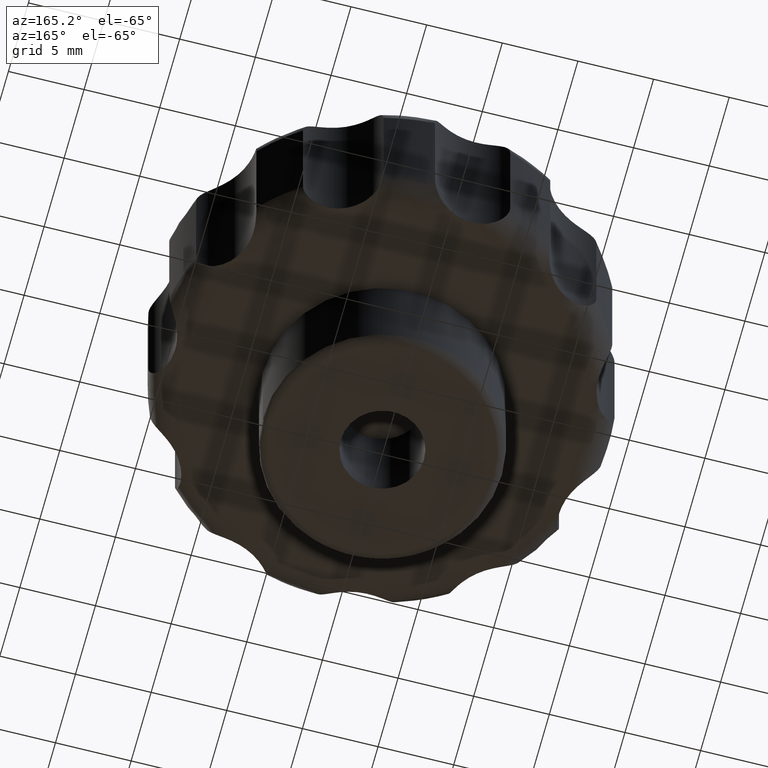
[diagram: clean part render]
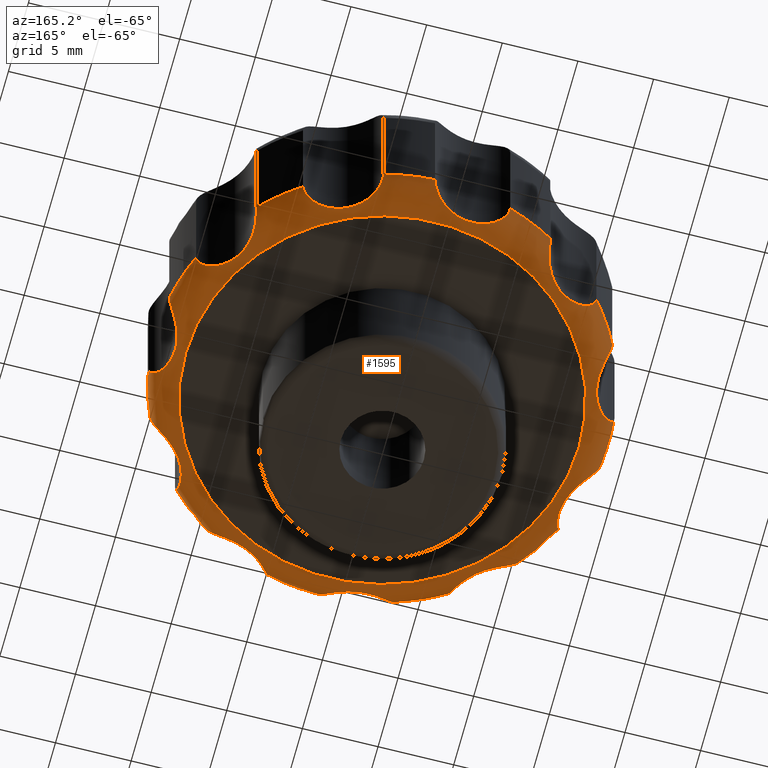
[diagram: same view with one face highlighted and labeled with its STEP entity id]
A machine part, auxiliary view. The second image highlights one B-rep face of the part: STEP entity #1595.
In plain terms, the highlighted face is a freeform B-spline surface patch.
Its self-contained STEP definition (entity closure, byte-faithful):
#7=CARTESIAN_POINT('',(-13.0,0.0,0.0));
#8=VERTEX_POINT('',#7);
#9=CARTESIAN_POINT('',(13.0,0.0,0.0));
#10=VERTEX_POINT('',#9);
#11=CARTESIAN_POINT('',(0.0,0.0,0.0));
#12=DIRECTION('',(0.0,0.0,1.0));
#13=DIRECTION('',(1.0,0.0,0.0));
#14=AXIS2_PLACEMENT_3D('',#11,#12,#13);
#15=CIRCLE('',#14,13.0);
#16=EDGE_CURVE('',#8,#10,#15,.T.);
#18=CARTESIAN_POINT('',(0.0,0.0,0.0));
#19=DIRECTION('',(0.0,0.0,1.0));
#20=DIRECTION('',(1.0,0.0,0.0));
#21=AXIS2_PLACEMENT_3D('',#18,#19,#20);
#22=CIRCLE('',#21,13.0);
#23=EDGE_CURVE('',#10,#8,#22,.T.);
#55=CARTESIAN_POINT('',(14.770908393575610,2.611563751585933,2.0));
#56=VERTEX_POINT('',#55);
#63=CARTESIAN_POINT('',(13.837996830716051,5.788768756228954,2.0));
#64=VERTEX_POINT('',#63);
#65=CARTESIAN_POINT('',(0.0,0.0,2.0));
#66=DIRECTION('',(0.0,0.0,1.0));
#67=DIRECTION('',(1.0,0.0,0.0));
#68=AXIS2_PLACEMENT_3D('',#65,#66,#67);
#69=CIRCLE('',#68,15.0);
#70=EDGE_CURVE('',#56,#64,#69,.T.);
#95=CARTESIAN_POINT('',(14.770908393575610,-2.611563751585933,2.0));
#96=VERTEX_POINT('',#95);
#114=CARTESIAN_POINT('',(13.837996830716065,-5.788768756228933,2.0));
#115=VERTEX_POINT('',#114);
#122=CARTESIAN_POINT('',(0.0,0.0,2.0));
#123=DIRECTION('',(0.0,0.0,1.0));
#124=DIRECTION('',(1.0,0.0,0.0));
#125=AXIS2_PLACEMENT_3D('',#122,#123,#124);
#126=CIRCLE('',#125,15.0);
#127=EDGE_CURVE('',#115,#96,#126,.T.);
#137=CARTESIAN_POINT('',(11.014160907726392,10.182743220699997,2.0));
#138=VERTEX_POINT('',#137);
#139=CARTESIAN_POINT('',(8.511619048717542,12.351208085426652,2.0));
#140=VERTEX_POINT('',#139);
#141=CARTESIAN_POINT('',(0.0,0.0,2.0));
#142=DIRECTION('',(0.0,0.0,1.0));
#143=DIRECTION('',(1.0,0.0,0.0));
#144=AXIS2_PLACEMENT_3D('',#141,#142,#143);
#145=CIRCLE('',#144,15.0);
#146=EDGE_CURVE('',#138,#140,#145,.T.);
#179=CARTESIAN_POINT('',(3.760495156016219,14.520973665067316,2.0));
#180=VERTEX_POINT('',#179);
#181=CARTESIAN_POINT('',(0.482862358977542,14.992226116967508,2.0));
#182=VERTEX_POINT('',#181);
#183=CARTESIAN_POINT('',(0.0,0.0,2.0));
#184=DIRECTION('',(0.0,0.0,1.0));
#185=DIRECTION('',(1.0,0.0,0.0));
#186=AXIS2_PLACEMENT_3D('',#183,#184,#185);
#187=CIRCLE('',#186,15.0);
#188=EDGE_CURVE('',#180,#182,#187,.T.);
#221=CARTESIAN_POINT('',(-4.687101237340002,14.248897571072852,2.0));
#222=VERTEX_POINT('',#221);
#223=CARTESIAN_POINT('',(-7.699199717995420,12.873318286378975,2.0));
#224=VERTEX_POINT('',#223);
#225=CARTESIAN_POINT('',(0.0,0.0,2.0));
#226=DIRECTION('',(0.0,0.0,1.0));
#227=DIRECTION('',(1.0,0.0,0.0));
#228=AXIS2_PLACEMENT_3D('',#225,#226,#227);
#229=CIRCLE('',#228,15.0);
#230=EDGE_CURVE('',#222,#224,#229,.T.);
#263=CARTESIAN_POINT('',(-11.646576105315575,9.452897176162040,2.0));
#264=VERTEX_POINT('',#263);
#265=CARTESIAN_POINT('',(-13.436820284450498,6.667222858385614,2.0));
#266=VERTEX_POINT('',#265);
#267=CARTESIAN_POINT('',(0.0,0.0,2.0));
#268=DIRECTION('',(0.0,0.0,1.0));
#269=DIRECTION('',(1.0,0.0,0.0));
#270=AXIS2_PLACEMENT_3D('',#267,#268,#269);
#271=CIRCLE('',#270,15.0);
#272=EDGE_CURVE('',#264,#266,#271,.T.);
#305=CARTESIAN_POINT('',(-14.908345350627904,1.655668718799575,2.0));
#306=VERTEX_POINT('',#305);
#307=CARTESIAN_POINT('',(-14.908345350627904,-1.655668718799575,2.0));
#308=VERTEX_POINT('',#307);
#309=CARTESIAN_POINT('',(0.0,0.0,2.0));
#310=DIRECTION('',(0.0,0.0,1.0));
#311=DIRECTION('',(1.0,0.0,0.0));
#312=AXIS2_PLACEMENT_3D('',#309,#310,#311);
#313=CIRCLE('',#312,15.0);
#314=EDGE_CURVE('',#306,#308,#313,.T.);
#347=CARTESIAN_POINT('',(-13.436820284450491,-6.667222858385635,2.0));
#348=VERTEX_POINT('',#347);
#349=CARTESIAN_POINT('',(-11.646576105315582,-9.452897176162033,2.0));
#350=VERTEX_POINT('',#349);
#351=CARTESIAN_POINT('',(0.0,0.0,2.0));
#352=DIRECTION('',(0.0,0.0,1.0));
#353=DIRECTION('',(1.0,0.0,0.0));
#354=AXIS2_PLACEMENT_3D('',#351,#352,#353);
#355=CIRCLE('',#354,15.0);
#356=EDGE_CURVE('',#348,#350,#355,.T.);
#389=CARTESIAN_POINT('',(-7.699199717995420,-12.873318286378975,2.0));
#390=VERTEX_POINT('',#389);
#391=CARTESIAN_POINT('',(-4.687101237340002,-14.248897571072852,2.0));
#392=VERTEX_POINT('',#391);
#393=CARTESIAN_POINT('',(0.0,0.0,2.0));
#394=DIRECTION('',(0.0,0.0,1.0));
#395=DIRECTION('',(1.0,0.0,0.0));
#396=AXIS2_PLACEMENT_3D('',#393,#394,#395);
#397=CIRCLE('',#396,15.0);
#398=EDGE_CURVE('',#390,#392,#397,.T.);
#431=CARTESIAN_POINT('',(0.482862358977542,-14.992226116967508,2.0));
#432=VERTEX_POINT('',#431);
#433=CARTESIAN_POINT('',(3.760495156016233,-14.520973665067316,2.0));
#434=VERTEX_POINT('',#433);
#435=CARTESIAN_POINT('',(0.0,0.0,2.0));
#436=DIRECTION('',(0.0,0.0,1.0));
#437=DIRECTION('',(1.0,0.0,0.0));
#438=AXIS2_PLACEMENT_3D('',#435,#436,#437);
#439=CIRCLE('',#438,15.0);
#440=EDGE_CURVE('',#432,#434,#439,.T.);
#473=CARTESIAN_POINT('',(8.511619048717527,-12.351208085426663,2.0));
#474=VERTEX_POINT('',#473);
#475=CARTESIAN_POINT('',(11.014160907726406,-10.182743220699976,2.0));
#476=VERTEX_POINT('',#475);
#477=CARTESIAN_POINT('',(0.0,0.0,2.0));
#478=DIRECTION('',(0.0,0.0,1.0));
#479=DIRECTION('',(1.0,0.0,0.0));
#480=AXIS2_PLACEMENT_3D('',#477,#478,#479);
#481=CIRCLE('',#480,15.0);
#482=EDGE_CURVE('',#474,#476,#481,.T.);
#1076=CARTESIAN_POINT('',(15.0,0.0,2.0));
#1077=CARTESIAN_POINT('',(15.0,0.0,1.739879570645162));
#1078=CARTESIAN_POINT('',(14.895922447768443,0.0,1.213944365313450));
#1079=CARTESIAN_POINT('',(14.450825822945896,0.0,0.549174177054105));
#1080=CARTESIAN_POINT('',(13.786055634686548,0.0,0.104077552231559));
#1081=CARTESIAN_POINT('',(13.260120429354838,0.0,1.592778E-017));
#1082=CARTESIAN_POINT('',(13.0,0.0,0.0));
#1083=CARTESIAN_POINT('',(15.0,0.980171403295606,2.0));
#1084=CARTESIAN_POINT('',(15.0,0.980171403295606,1.739879570645162));
#1085=CARTESIAN_POINT('',(14.895922447768443,0.973370480600781,1.213944365313450));
#1086=CARTESIAN_POINT('',(14.450825822945896,0.944285748377151,0.549174177054105));
#1087=CARTESIAN_POINT('',(13.786055634686548,0.900846499824134,0.104077552231559));
#1088=CARTESIAN_POINT('',(13.260120429354838,0.866479389940631,9.769780E-018));
#1089=CARTESIAN_POINT('',(13.0,0.849481882856192,0.0));
#1090=CARTESIAN_POINT('',(14.806614185968764,2.945946464761674,1.999999999999999));
#1091=CARTESIAN_POINT('',(14.806614185968764,2.945946464761674,1.739879570645162));
#1092=CARTESIAN_POINT('',(14.703878441881248,2.925506004957834,1.213944365313450));
#1093=CARTESIAN_POINT('',(14.264520175266298,2.838090616399610,0.549174177054105));
#1094=CARTESIAN_POINT('',(13.608320461940295,2.707532124000839,0.104077552231558));
#1095=CARTESIAN_POINT('',(13.089165817129306,2.604240326744796,2.307303E-017));
#1096=CARTESIAN_POINT('',(12.832398961172929,2.553153602793450,0.0));
#1097=CARTESIAN_POINT('',(13.947525585400044,5.777059249842273,2.0));
#1098=CARTESIAN_POINT('',(13.947525585400044,5.777059249842273,1.739879570645162));
#1099=CARTESIAN_POINT('',(13.850750630559020,5.736975104120921,1.213944365313450));
#1100=CARTESIAN_POINT('',(13.436884193046501,5.565551799220611,0.549174177054105));
#1101=CARTESIAN_POINT('',(12.818757579102611,5.309524014880411,0.104077552231559));
#1102=CARTESIAN_POINT('',(12.329724596927495,5.106966758695124,1.564338E-019));
#1103=CARTESIAN_POINT('',(12.087855507346706,5.006784683196637,0.0));
#1104=CARTESIAN_POINT('',(12.552441398446865,8.387325448727314,2.000000000000001));
#1105=CARTESIAN_POINT('',(12.552441398446865,8.387325448727314,1.739879570645163));
#1106=CARTESIAN_POINT('',(12.465346240094828,8.329129961895781,1.213944365313450));
#1107=CARTESIAN_POINT('',(12.092876286779404,8.080251945327991,0.549174177054105));
#1108=CARTESIAN_POINT('',(11.536577031342071,7.708542350825134,0.104077552231558));
#1109=CARTESIAN_POINT('',(11.096458975054976,7.414463035354450,-1.487527E-016));
#1110=CARTESIAN_POINT('',(10.878782545320615,7.269015388897001,0.0));
#1111=CARTESIAN_POINT('',(10.674973928041592,10.674959927012679,2.0));
#1112=CARTESIAN_POINT('',(10.674973928041592,10.674959927012679,1.739879570645163));
#1113=CARTESIAN_POINT('',(10.600905584270510,10.600891680387784,1.213944365313451));
#1114=CARTESIAN_POINT('',(10.284145926574510,10.284132438145830,0.549174177054106));
#1115=CARTESIAN_POINT('',(9.811052298053989,9.811039430123090,0.104077552231559));
#1116=CARTESIAN_POINT('',(9.436762657736972,9.436750280715005,2.491797E-016));
#1117=CARTESIAN_POINT('',(9.251644070969380,9.251631936744325,0.0));
#1118=CARTESIAN_POINT('',(8.387273196176041,12.552445150011245,2.000000000000000));
#1119=CARTESIAN_POINT('',(8.387273196176041,12.552445150011245,1.739879570645162));
#1120=CARTESIAN_POINT('',(8.329078071899017,12.465349965628969,1.213944365313450));
#1121=CARTESIAN_POINT('',(8.080201605826847,12.092879900992971,0.549174177054105));
#1122=CARTESIAN_POINT('',(7.708494327053216,11.536580479293752,0.104077552231558));
#1123=CARTESIAN_POINT('',(7.414416843679614,11.096462291468008,1.977256E-017));
#1124=CARTESIAN_POINT('',(7.268970103352572,10.878785796676409,0.0));
#1125=CARTESIAN_POINT('',(5.777254259018439,13.947524580171400,2.000000000000000));
#1126=CARTESIAN_POINT('',(5.777254259018439,13.947524580171400,1.739879570645162));
#1127=CARTESIAN_POINT('',(5.737168760225241,13.850749632305156,1.213944365313450));
#1128=CARTESIAN_POINT('',(5.565739668796523,13.436883224620898,0.549174177054105));
#1129=CARTESIAN_POINT('',(5.309703242037201,12.818756655226739,0.104077552231559));
#1130=CARTESIAN_POINT('',(5.107139148372513,12.329723708297299,-1.223930E-016));
#1131=CARTESIAN_POINT('',(5.006953691149316,12.087854636148545,0.0));
#1132=CARTESIAN_POINT('',(2.945218680608279,14.806614455318972,2.000000000000000));
#1133=CARTESIAN_POINT('',(2.945218680608279,14.806614455318972,1.739879570645162));
#1134=CARTESIAN_POINT('',(2.924783270537323,14.703878709362568,1.213944365313451));
#1135=CARTESIAN_POINT('',(2.837389477597117,14.264520434755157,0.549174177054106));
#1136=CARTESIAN_POINT('',(2.706863239145593,13.608320709492094,0.104077552231558));
#1137=CARTESIAN_POINT('',(2.603596959710092,13.089166055237049,1.241248E-016));
#1138=CARTESIAN_POINT('',(2.552522856527178,12.832399194609776,0.0));
#1139=CARTESIAN_POINT('',(-2.553513E-015,15.096692834843449,2.0));
#1140=CARTESIAN_POINT('',(-2.553513E-015,15.096692834843449,1.739879570645162));
#1141=CARTESIAN_POINT('',(-2.886580E-015,14.991944379040635,1.213944365313450));
#1142=CARTESIAN_POINT('',(-9.992007E-016,14.543978577255865,0.549174177054105));
#1143=CARTESIAN_POINT('',(-6.661338E-016,13.874923154728370,0.104077552231558));
#1144=CARTESIAN_POINT('',(4.440892E-016,13.345597671666827,-5.791897E-017));
#1145=CARTESIAN_POINT('',(5.551115E-016,13.083800456864319,0.0));
#1146=CARTESIAN_POINT('',(-2.945218680608269,14.806614205307243,2.0));
#1147=CARTESIAN_POINT('',(-2.945218680608269,14.806614205307243,1.739879570645162));
#1148=CARTESIAN_POINT('',(-2.924783270537310,14.703878461085548,1.213944365313450));
#1149=CARTESIAN_POINT('',(-2.837389477597109,14.264520193896763,0.549174177054106));
#1150=CARTESIAN_POINT('',(-2.706863239145579,13.608320479713722,0.104077552231560));
#1151=CARTESIAN_POINT('',(-2.603596959710079,13.089165834224676,2.031178E-016));
#1152=CARTESIAN_POINT('',(-2.552522856527163,12.832398977932950,0.0));
#1153=CARTESIAN_POINT('',(-5.777254259018445,13.947525580218317,2.0));
#1154=CARTESIAN_POINT('',(-5.777254259018445,13.947525580218317,1.739879570645162));
#1155=CARTESIAN_POINT('',(-5.737168760225248,13.850750625413239,1.213944365313450));
#1156=CARTESIAN_POINT('',(-5.565739668796521,13.436884188054492,0.549174177054105));
#1157=CARTESIAN_POINT('',(-5.309703242037206,12.818757574340230,0.104077552231558));
#1158=CARTESIAN_POINT('',(-5.107139148372510,12.329724592346809,2.876349E-018));
#1159=CARTESIAN_POINT('',(-5.006953691149315,12.087855502855875,0.0));
#1160=CARTESIAN_POINT('',(-8.387273196176036,12.552441399835303,2.000000000000000));
#1161=CARTESIAN_POINT('',(-8.387273196176036,12.552441399835303,1.739879570645163));
#1162=CARTESIAN_POINT('',(-8.329078071899012,12.465346241473640,1.213944365313449));
#1163=CARTESIAN_POINT('',(-8.080201605826847,12.092876288117003,0.549174177054105));
#1164=CARTESIAN_POINT('',(-7.708494327053208,11.536577032618148,0.104077552231559));
#1165=CARTESIAN_POINT('',(-7.414416843679611,11.096458976282364,-1.190565E-016));
#1166=CARTESIAN_POINT('',(-7.268970103352567,10.878782546523926,0.0));
#1167=CARTESIAN_POINT('',(-10.674973928041595,10.674973927669566,2.000000000000000));
#1168=CARTESIAN_POINT('',(-10.674973928041595,10.674973927669566,1.739879570645162));
#1169=CARTESIAN_POINT('',(-10.600905584270512,10.600905583901064,1.213944365313450));
#1170=CARTESIAN_POINT('',(-10.284145926574510,10.284145926216107,0.549174177054105));
#1171=CARTESIAN_POINT('',(-9.811052298053985,9.811052297712076,0.104077552231559));
#1172=CARTESIAN_POINT('',(-9.436762657736969,9.436762657408105,1.276751E-016));
#1173=CARTESIAN_POINT('',(-9.251644070969377,9.251644070646965,0.0));
#1174=CARTESIAN_POINT('',(-12.552441398446858,8.387273196275695,2.0));
#1175=CARTESIAN_POINT('',(-12.552441398446858,8.387273196275695,1.739879570645162));
#1176=CARTESIAN_POINT('',(-12.465346240094830,8.329078071997977,1.213944365313449));
#1177=CARTESIAN_POINT('',(-12.092876286779392,8.080201605922847,0.549174177054104));
#1178=CARTESIAN_POINT('',(-11.536577031342064,7.708494327144802,0.104077552231558));
#1179=CARTESIAN_POINT('',(-11.096458975054970,7.414416843767707,-1.857668E-016));
#1180=CARTESIAN_POINT('',(-10.878782545320606,7.268970103438938,0.0));
#1181=CARTESIAN_POINT('',(-13.947525585400044,5.777254258991868,2.000000000000000));
#1182=CARTESIAN_POINT('',(-13.947525585400044,5.777254258991868,1.739879570645162));
#1183=CARTESIAN_POINT('',(-13.850750630559013,5.737168760198856,1.213944365313449));
#1184=CARTESIAN_POINT('',(-13.436884193046502,5.565739668770925,0.549174177054104));
#1185=CARTESIAN_POINT('',(-12.818757579102598,5.309703242012786,0.104077552231558));
#1186=CARTESIAN_POINT('',(-12.329724596927486,5.107139148349027,-1.715235E-016));
#1187=CARTESIAN_POINT('',(-12.087855507346699,5.006953691126293,0.0));
#1188=CARTESIAN_POINT('',(-14.806614185968771,2.945218680614927,2.0));
#1189=CARTESIAN_POINT('',(-14.806614185968771,2.945218680614927,1.739879570645162));
#1190=CARTESIAN_POINT('',(-14.703878441881255,2.924783270543922,1.213944365313451));
#1191=CARTESIAN_POINT('',(-14.264520175266302,2.837389477603521,0.549174177054105));
#1192=CARTESIAN_POINT('',(-13.608320461940306,2.706863239151697,0.104077552231559));
#1193=CARTESIAN_POINT('',(-13.089165817129313,2.603596959715963,8.494505E-017));
#1194=CARTESIAN_POINT('',(-12.832398961172938,2.552522856532933,0.0));
#1195=CARTESIAN_POINT('',(-15.096692907015616,2.442491E-015,2.0));
#1196=CARTESIAN_POINT('',(-15.096692907015616,2.442491E-015,1.739879570645162));
#1197=CARTESIAN_POINT('',(-14.991944450712039,2.553513E-015,1.213944365313450));
#1198=CARTESIAN_POINT('',(-14.543978646785694,3.996803E-015,0.549174177054105));
#1199=CARTESIAN_POINT('',(-13.874923221059667,6.217249E-015,0.104077552231558));
#1200=CARTESIAN_POINT('',(-13.345597735467599,7.327472E-015,-7.269003E-017));
#1201=CARTESIAN_POINT('',(-13.083800519413533,8.104628E-015,0.0));
#1202=CARTESIAN_POINT('',(-14.806614185968765,-2.945218680614928,2.000000000000000));
#1203=CARTESIAN_POINT('',(-14.806614185968765,-2.945218680614928,1.739879570645163));
#1204=CARTESIAN_POINT('',(-14.703878441881249,-2.924783270543922,1.213944365313451));
#1205=CARTESIAN_POINT('',(-14.264520175266295,-2.837389477603519,0.549174177054106));
#1206=CARTESIAN_POINT('',(-13.608320461940306,-2.706863239151693,0.104077552231560));
#1207=CARTESIAN_POINT('',(-13.089165817129317,-2.603596959715954,3.013818E-016));
#1208=CARTESIAN_POINT('',(-12.832398961172938,-2.552522856532923,0.0));
#1209=CARTESIAN_POINT('',(-13.947525585400051,-5.777254258991856,2.000000000000000));
#1210=CARTESIAN_POINT('',(-13.947525585400051,-5.777254258991856,1.739879570645161));
#1211=CARTESIAN_POINT('',(-13.850750630559023,-5.737168760198841,1.213944365313449));
#1212=CARTESIAN_POINT('',(-13.436884193046509,-5.565739668770909,0.549174177054104));
#1213=CARTESIAN_POINT('',(-12.818757579102616,-5.309703242012766,0.104077552231557));
#1214=CARTESIAN_POINT('',(-12.329724596927495,-5.107139148349006,-3.754085E-016));
#1215=CARTESIAN_POINT('',(-12.087855507346706,-5.006953691126270,0.0));
#1216=CARTESIAN_POINT('',(-12.552441398446856,-8.387273196275693,2.0));
#1217=CARTESIAN_POINT('',(-12.552441398446856,-8.387273196275693,1.739879570645162));
#1218=CARTESIAN_POINT('',(-12.465346240094823,-8.329078071997978,1.213944365313450));
#1219=CARTESIAN_POINT('',(-12.092876286779395,-8.080201605922850,0.549174177054104));
#1220=CARTESIAN_POINT('',(-11.536577031342068,-7.708494327144797,0.104077552231558));
#1221=CARTESIAN_POINT('',(-11.096458975054976,-7.414416843767699,-2.790473E-017));
#1222=CARTESIAN_POINT('',(-10.878782545320615,-7.268970103438928,0.0));
#1223=CARTESIAN_POINT('',(-10.674973928041602,-10.674973927669567,2.000000000000000));
#1224=CARTESIAN_POINT('',(-10.674973928041602,-10.674973927669567,1.739879570645162));
#1225=CARTESIAN_POINT('',(-10.600905584270519,-10.600905583901064,1.213944365313449));
#1226=CARTESIAN_POINT('',(-10.284145926574514,-10.284145926216100,0.549174177054105));
#1227=CARTESIAN_POINT('',(-9.811052298053998,-9.811052297712067,0.104077552231559));
#1228=CARTESIAN_POINT('',(-9.436762657736979,-9.436762657408096,-7.926769E-017));
#1229=CARTESIAN_POINT('',(-9.251644070969388,-9.251644070646956,0.0));
#1230=CARTESIAN_POINT('',(-8.387273196176038,-12.552441399835295,2.0));
#1231=CARTESIAN_POINT('',(-8.387273196176038,-12.552441399835295,1.739879570645162));
#1232=CARTESIAN_POINT('',(-8.329078071899016,-12.465346241473632,1.213944365313450));
#1233=CARTESIAN_POINT('',(-8.080201605826847,-12.092876288117001,0.549174177054105));
#1234=CARTESIAN_POINT('',(-7.708494327053217,-11.536577032618133,0.104077552231559));
#1235=CARTESIAN_POINT('',(-7.414416843679619,-11.096458976282356,-6.990004E-019));
#1236=CARTESIAN_POINT('',(-7.268970103352579,-10.878782546523915,0.0));
#1237=CARTESIAN_POINT('',(-5.777254259018446,-13.947525580218311,2.000000000000000));
#1238=CARTESIAN_POINT('',(-5.777254259018446,-13.947525580218311,1.739879570645162));
#1239=CARTESIAN_POINT('',(-5.737168760225247,-13.850750625413237,1.213944365313450));
#1240=CARTESIAN_POINT('',(-5.565739668796529,-13.436884188054472,0.549174177054105));
#1241=CARTESIAN_POINT('',(-5.309703242037209,-12.818757574340236,0.104077552231559));
#1242=CARTESIAN_POINT('',(-5.107139148372516,-12.329724592346802,-4.299021E-017));
#1243=CARTESIAN_POINT('',(-5.006953691149319,-12.087855502855870,0.0));
#1244=CARTESIAN_POINT('',(-2.945218680608285,-14.806614205307238,2.000000000000000));
#1245=CARTESIAN_POINT('',(-2.945218680608285,-14.806614205307238,1.739879570645162));
#1246=CARTESIAN_POINT('',(-2.924783270537326,-14.703878461085544,1.213944365313450));
#1247=CARTESIAN_POINT('',(-2.837389477597122,-14.264520193896761,0.549174177054105));
#1248=CARTESIAN_POINT('',(-2.706863239145593,-13.608320479713717,0.104077552231559));
#1249=CARTESIAN_POINT('',(-2.603596959710092,-13.089165834224669,4.760594E-017));
#1250=CARTESIAN_POINT('',(-2.552522856527177,-12.832398977932943,0.0));
#1251=CARTESIAN_POINT('',(-3.552714E-015,-15.096692834843449,2.000000000000000));
#1252=CARTESIAN_POINT('',(-3.552714E-015,-15.096692834843449,1.739879570645162));
#1253=CARTESIAN_POINT('',(-4.773959E-015,-14.991944379040637,1.213944365313450));
#1254=CARTESIAN_POINT('',(-7.993606E-015,-14.543978577255869,0.549174177054105));
#1255=CARTESIAN_POINT('',(-1.276756E-014,-13.874923154728370,0.104077552231558));
#1256=CARTESIAN_POINT('',(-1.665335E-014,-13.345597671666827,-5.186684E-017));
#1257=CARTESIAN_POINT('',(-1.887379E-014,-13.083800456864324,0.0));
#1258=CARTESIAN_POINT('',(2.945218680608286,-14.806614455318968,2.000000000000000));
#1259=CARTESIAN_POINT('',(2.945218680608286,-14.806614455318968,1.739879570645162));
#1260=CARTESIAN_POINT('',(2.924783270537328,-14.703878709362566,1.213944365313450));
#1261=CARTESIAN_POINT('',(2.837389477597122,-14.264520434755156,0.549174177054106));
#1262=CARTESIAN_POINT('',(2.706863239145590,-13.608320709492098,0.104077552231560));
#1263=CARTESIAN_POINT('',(2.603596959710086,-13.089166055237053,2.554281E-016));
#1264=CARTESIAN_POINT('',(2.552522856527171,-12.832399194609776,0.0));
#1265=CARTESIAN_POINT('',(5.777254259018429,-13.947524580171402,2.0));
#1266=CARTESIAN_POINT('',(5.777254259018429,-13.947524580171402,1.739879570645162));
#1267=CARTESIAN_POINT('',(5.737168760225229,-13.850749632305151,1.213944365313450));
#1268=CARTESIAN_POINT('',(5.565739668796507,-13.436883224620896,0.549174177054104));
#1269=CARTESIAN_POINT('',(5.309703242037187,-12.818756655226739,0.104077552231558));
#1270=CARTESIAN_POINT('',(5.107139148372491,-12.329723708297307,-2.124171E-016));
#1271=CARTESIAN_POINT('',(5.006953691149294,-12.087854636148549,0.0));
#1272=CARTESIAN_POINT('',(8.387273196176052,-12.552445150011245,2.000000000000000));
#1273=CARTESIAN_POINT('',(8.387273196176052,-12.552445150011245,1.739879570645162));
#1274=CARTESIAN_POINT('',(8.329078071899028,-12.465349965628969,1.213944365313450));
#1275=CARTESIAN_POINT('',(8.080201605826851,-12.092879900992967,0.549174177054105));
#1276=CARTESIAN_POINT('',(7.708494327053215,-11.536580479293766,0.104077552231559));
#1277=CARTESIAN_POINT('',(7.414416843679613,-11.096462291468013,2.794523E-017));
#1278=CARTESIAN_POINT('',(7.268970103352567,-10.878785796676418,0.0));
#1279=CARTESIAN_POINT('',(10.674973928041581,-10.674959927012688,2.000000000000000));
#1280=CARTESIAN_POINT('',(10.674973928041581,-10.674959927012688,1.739879570645162));
#1281=CARTESIAN_POINT('',(10.600905584270500,-10.600891680387797,1.213944365313450));
#1282=CARTESIAN_POINT('',(10.284145926574499,-10.284132438145843,0.549174177054106));
#1283=CARTESIAN_POINT('',(9.811052298053976,-9.811039430123095,0.104077552231560));
#1284=CARTESIAN_POINT('',(9.436762657736958,-9.436750280715019,1.962029E-016));
#1285=CARTESIAN_POINT('',(9.251644070969366,-9.251631936744339,0.0));
#1286=CARTESIAN_POINT('',(12.552441398446859,-8.387325448727321,2.000000000000000));
#1287=CARTESIAN_POINT('',(12.552441398446859,-8.387325448727321,1.739879570645163));
#1288=CARTESIAN_POINT('',(12.465346240094830,-8.329129961895788,1.213944365313451));
#1289=CARTESIAN_POINT('',(12.092876286779395,-8.080251945328005,0.549174177054105));
#1290=CARTESIAN_POINT('',(11.536577031342063,-7.708542350825153,0.104077552231558));
#1291=CARTESIAN_POINT('',(11.096458975054967,-7.414463035354468,-5.532822E-017));
#1292=CARTESIAN_POINT('',(10.878782545320604,-7.269015388897024,0.0));
#1293=CARTESIAN_POINT('',(13.947525585400046,-5.777059249842267,2.000000000000000));
#1294=CARTESIAN_POINT('',(13.947525585400046,-5.777059249842267,1.739879570645162));
#1295=CARTESIAN_POINT('',(13.850750630559018,-5.736975104120917,1.213944365313449));
#1296=CARTESIAN_POINT('',(13.436884193046499,-5.565551799220602,0.549174177054105));
#1297=CARTESIAN_POINT('',(12.818757579102614,-5.309524014880399,0.104077552231559));
#1298=CARTESIAN_POINT('',(12.329724596927496,-5.106966758695111,-9.994389E-017));
#1299=CARTESIAN_POINT('',(12.087855507346706,-5.006784683196623,0.0));
#1300=CARTESIAN_POINT('',(14.806614185968765,-2.945946464761692,2.0));
#1301=CARTESIAN_POINT('',(14.806614185968765,-2.945946464761692,1.739879570645163));
#1302=CARTESIAN_POINT('',(14.703878441881251,-2.925506004957853,1.213944365313451));
#1303=CARTESIAN_POINT('',(14.264520175266298,-2.838090616399634,0.549174177054106));
#1304=CARTESIAN_POINT('',(13.608320461940291,-2.707532124000867,0.104077552231558));
#1305=CARTESIAN_POINT('',(13.089165817129304,-2.604240326744827,1.094293E-016));
#1306=CARTESIAN_POINT('',(12.832398961172924,-2.553153602793484,0.0));
#1307=CARTESIAN_POINT('',(15.0,-0.980171403295611,2.0));
#1308=CARTESIAN_POINT('',(15.0,-0.980171403295611,1.739879570645162));
#1309=CARTESIAN_POINT('',(14.895922447768443,-0.973370480600786,1.213944365313450));
#1310=CARTESIAN_POINT('',(14.450825822945896,-0.944285748377158,0.549174177054105));
#1311=CARTESIAN_POINT('',(13.786055634686548,-0.900846499824146,0.104077552231559));
#1312=CARTESIAN_POINT('',(13.260120429354838,-0.866479389940645,2.208579E-017));
#1313=CARTESIAN_POINT('',(13.0,-0.849481882856208,0.0));
#1314=CARTESIAN_POINT('',(15.0,-3.673940E-015,2.0));
#1315=CARTESIAN_POINT('',(15.0,-3.673940E-015,1.739879570645162));
#1316=CARTESIAN_POINT('',(14.895922447768443,-4.249305E-015,1.213944365313450));
#1317=CARTESIAN_POINT('',(14.450825822945896,-6.709902E-015,0.549174177054105));
#1318=CARTESIAN_POINT('',(13.786055634686548,-1.038490E-014,0.104077552231559));
#1319=CARTESIAN_POINT('',(13.260120429354838,-1.329240E-014,1.592778E-017));
#1320=CARTESIAN_POINT('',(13.0,-1.473040E-014,0.0));
#1321=B_SPLINE_SURFACE_WITH_KNOTS('',3,3,((#1076,#1083,#1090,#1097,#1104,#1111,#1118,#1125,#1132,#1139,#1146,#1153,#1160,#1167,#1174,#1181,#1188,#1195,#1202,#1209,#1216,#1223,#1230,#1237,#1244,#1251,#1258,#1265,#1272,#1279,#1286,#1293,#1300,#1307,#1314),(#1077,#1084,#1091,#1098,#1105,#1112,#1119,#1126,#1133,#1140,#1147,#1154,#1161,#1168,#1175,#1182,#1189,#1196,#1203,#1210,#1217,#1224,#1231,#1238,#1245,#1252,#1259,#1266,#1273,#1280,#1287,#1294,#1301,#1308,#1315),(#1078,#1085,#1092,#1099,#1106,#1113,#1120,#1127,#1134,#1141,#1148,#1155,#1162,#1169,#1176,#1183,#1190,#1197,#1204,#1211,#1218,#1225,#1232,#1239,#1246,#1253,#1260,#1267,#1274,#1281,#1288,#1295,#1302,#1309,#1316),(#1079,#1086,#1093,#1100,#1107,#1114,#1121,#1128,#1135,#1142,#1149,#1156,#1163,#1170,#1177,#1184,#1191,#1198,#1205,#1212,#1219,#1226,#1233,#1240,#1247,#1254,#1261,#1268,#1275,#1282,#1289,#1296,#1303,#1310,#1317),(#1080,#1087,#1094,#1101,#1108,#1115,#1122,#1129,#1136,#1143,#1150,#1157,#1164,#1171,#1178,#1185,#1192,#1199,#1206,#1213,#1220,#1227,#1234,#1241,#1248,#1255,#1262,#1269,#1276,#1283,#1290,#1297,#1304,#1311,#1318),(#1081,#1088,#1095,#1102,#1109,#1116,#1123,#1130,#1137,#1144,#1151,#1158,#1165,#1172,#1179,#1186,#1193,#1200,#1207,#1214,#1221,#1228,#1235,#1242,#1249,#1256,#1263,#1270,#1277,#1284,#1291,#1298,#1305,#1312,#1319),(#1082,#1089,#1096,#1103,#1110,#1117,#1124,#1131,#1138,#1145,#1152,#1159,#1166,#1173,#1180,#1187,#1194,#1201,#1208,#1215,#1222,#1229,#1236,#1243,#1250,#1257,#1264,#1271,#1278,#1285,#1292,#1299,#1306,#1313,#1320)),.UNSPECIFIED.,.F.,.T.,.U.,(4,1,1,1,4),(4,1,1,1,1,1,1,1,1,1,1,1,1,1,1,1,1,1,1,1,1,1,1,1,1,1,1,1,1,1,1,1,4),(0.0,0.780361288064513,1.560722576129026,2.341083864193540,3.121445152258053),(0.0,2.784758680894016,5.569517361788033,8.354276042682049,11.139034723576064,13.923793404470080,16.708552085364094,19.493310766258112,22.278069447152127,25.062828128046146,27.847586808940157,30.632345489834172,33.417104170728187,36.201862851622209,38.986621532516224,41.771380213410239,44.556138894304254,47.340897575198269,50.125656256092292,52.910414936986299,55.695173617880322,58.479932298774337,61.264690979668352,64.049449660562374,66.834208341456389,69.618967022350404,72.403725703244433,75.188484384138434,77.973243065032463,80.758001745926478,83.542760426820479,86.327519107714508,89.112277788608523),.UNSPECIFIED.);
#1322=ORIENTED_EDGE('',*,*,#23,.T.);
#1323=ORIENTED_EDGE('',*,*,#16,.T.);
#1324=CARTESIAN_POINT('',(13.693981453961499,0.0,0.124262880476723));
#1325=VERTEX_POINT('',#1324);
#1326=CARTESIAN_POINT('',(13.0,0.0,2.0));
#1327=DIRECTION('',(0.0,1.0,0.0));
#1328=DIRECTION('',(1.0,0.0,0.0));
#1329=AXIS2_PLACEMENT_3D('',#1326,#1327,#1328);
#1330=CIRCLE('',#1329,2.0);
#1331=EDGE_CURVE('',#1325,#10,#1330,.T.);
#1332=ORIENTED_EDGE('',*,*,#1331,.F.);
#1333=CARTESIAN_POINT('',(13.693981453961499,-7.105427E-015,0.124262880476722));
#1334=CARTESIAN_POINT('',(13.693981453961499,-0.220301985590069,0.124262880476722));
#1335=CARTESIAN_POINT('',(13.731922730915244,-0.643680336524696,0.141025869745379));
#1336=CARTESIAN_POINT('',(13.880174191195749,-1.198899037033513,0.223063865478571));
#1337=CARTESIAN_POINT('',(14.069039760585909,-1.642277094048019,0.364920987444517));
#1338=CARTESIAN_POINT('',(14.255725495014332,-1.971012764704483,0.551736840910856));
#1339=CARTESIAN_POINT('',(14.445340331819011,-2.243607637200910,0.806689495474585));
#1340=CARTESIAN_POINT('',(14.631390966537936,-2.467921889025327,1.163629005119907));
#1341=CARTESIAN_POINT('',(14.748733106990244,-2.589379944729373,1.587232305658008));
#1342=CARTESIAN_POINT('',(14.770908393575610,-2.611563751585933,1.885442797763564));
#1343=CARTESIAN_POINT('',(14.770908393575610,-2.611563751585933,2.0));
#1344=B_SPLINE_CURVE_WITH_KNOTS('',3,(#1333,#1334,#1335,#1336,#1337,#1338,#1339,#1340,#1341,#1342,#1343),.UNSPECIFIED.,.F.,.U.,(4,1,1,1,1,1,1,1,4),(0.0,0.661999605752971,1.268341474061092,1.732847607160499,2.161964137085540,2.526235038615155,2.982164439674542,3.531264570004058,3.875554419605523),.UNSPECIFIED.);
#1345=EDGE_CURVE('',#1325,#96,#1344,.T.);
#1346=ORIENTED_EDGE('',*,*,#1345,.T.);
#1347=ORIENTED_EDGE('',*,*,#127,.F.);
#1348=CARTESIAN_POINT('',(13.837996830716065,-5.788768756228947,2.0));
#1349=CARTESIAN_POINT('',(13.837996830716065,-5.788768756228947,1.891106811989678));
#1350=CARTESIAN_POINT('',(13.809118245454059,-5.795082271900768,1.595211508278690));
#1351=CARTESIAN_POINT('',(13.649266491374448,-5.832437947276688,1.174537140379110));
#1352=CARTESIAN_POINT('',(13.378092479682373,-5.918012064753910,0.821816202440106));
#1353=CARTESIAN_POINT('',(13.058600987836982,-6.048038525069011,0.548698616708488));
#1354=CARTESIAN_POINT('',(12.675800468812142,-6.249010709866397,0.338856095623296));
#1355=CARTESIAN_POINT('',(12.252832021880707,-6.553893073651373,0.205980844409853));
#1356=CARTESIAN_POINT('',(11.833614734443898,-6.959656018080921,0.134335130971961));
#1357=CARTESIAN_POINT('',(11.456536722405652,-7.465029800168338,0.115388223628209));
#1358=CARTESIAN_POINT('',(11.175925591182676,-8.037736030128173,0.148191236662382));
#1359=CARTESIAN_POINT('',(11.014642441442646,-8.577230724803634,0.238838308451470));
#1360=CARTESIAN_POINT('',(10.936996603541033,-9.069494011819970,0.393558205872405));
#1361=CARTESIAN_POINT('',(10.927309526972479,-9.451918406476196,0.605452954754885));
#1362=CARTESIAN_POINT('',(10.946735428282302,-9.769322806529509,0.886592246536941));
#1363=CARTESIAN_POINT('',(10.979135604415802,-10.010139525836173,1.213786402016128));
#1364=CARTESIAN_POINT('',(11.008203968294062,-10.155364225593907,1.614731982848707));
#1365=CARTESIAN_POINT('',(11.014160907726406,-10.182743220699976,1.888739275627082));
#1366=CARTESIAN_POINT('',(11.014160907726406,-10.182743220699976,2.0));
#1367=B_SPLINE_CURVE_WITH_KNOTS('',3,(#1348,#1349,#1350,#1351,#1352,#1353,#1354,#1355,#1356,#1357,#1358,#1359,#1360,#1361,#1362,#1363,#1364,#1365,#1366),.UNSPECIFIED.,.F.,.U.,(4,1,1,1,1,1,1,1,1,1,1,1,1,1,1,1,4),(0.0,0.327210130096221,0.886575828973672,1.335367345874914,1.673984426770991,2.200227040267181,2.764908836031204,3.278203970736851,3.957565551258889,4.647581944190296,5.183530552735221,5.661164851905535,6.205228636610255,6.482725803799480,6.930127592519630,7.416761489628995,7.751108947127830),.UNSPECIFIED.);
#1368=EDGE_CURVE('',#115,#476,#1367,.T.);
#1369=ORIENTED_EDGE('',*,*,#1368,.T.);
#1370=ORIENTED_EDGE('',*,*,#482,.F.);
#1371=CARTESIAN_POINT('',(8.511619048717535,-12.351208085426663,2.0));
#1372=CARTESIAN_POINT('',(8.511619048717535,-12.351208085426663,1.891106811989618));
#1373=CARTESIAN_POINT('',(8.483911492568652,-12.340906410847140,1.595211508278741));
#1374=CARTESIAN_POINT('',(8.329239636848868,-12.285909621731058,1.174537140376678));
#1375=CARTESIAN_POINT('',(8.054848680671782,-12.211291411023694,0.821816202444594));
#1376=CARTESIAN_POINT('',(7.715777722603839,-12.147946488793487,0.548698616645332));
#1377=CARTESIAN_POINT('',(7.285091667154816,-12.110057463724445,0.338856095654887));
#1378=CARTESIAN_POINT('',(6.764436116537567,-12.137866822494686,0.205980844459284));
#1379=CARTESIAN_POINT('',(6.192396082246525,-12.252570356092534,0.134335130899749));
#1380=CARTESIAN_POINT('',(5.601952177510505,-12.473854071201202,0.115388223627262));
#1381=CARTESIAN_POINT('',(5.056258707366482,-12.803935379491087,0.148191236772549));
#1382=CARTESIAN_POINT('',(4.628905835149475,-13.170590943669339,0.238838308764267));
#1383=CARTESIAN_POINT('',(4.297448374002244,-13.542730663761382,0.393558206442680));
#1384=CARTESIAN_POINT('',(4.082544849509070,-13.859209307701846,0.605452955544258));
#1385=CARTESIAN_POINT('',(3.927285183524212,-14.136729315526892,0.886592247469459));
#1386=CARTESIAN_POINT('',(3.824346598339382,-14.356834088885421,1.213786403061521));
#1387=CARTESIAN_POINT('',(3.770286061923500,-14.494720424230728,1.614731983605784));
#1388=CARTESIAN_POINT('',(3.760495156016233,-14.520973665067316,1.888739275999396));
#1389=CARTESIAN_POINT('',(3.760495156016233,-14.520973665067316,2.0));
#1390=B_SPLINE_CURVE_WITH_KNOTS('',3,(#1371,#1372,#1373,#1374,#1375,#1376,#1377,#1378,#1379,#1380,#1381,#1382,#1383,#1384,#1385,#1386,#1387,#1388,#1389),.UNSPECIFIED.,.F.,.U.,(4,1,1,1,1,1,1,1,1,1,1,1,1,1,1,1,4),(0.0,0.327210130096400,0.886575828974368,1.335367345875606,1.673984426771775,2.200227040488910,2.764908836384567,3.278203970734925,3.957565552277429,4.647581945507405,5.183530554238329,5.661164853430654,6.205228637951858,6.482725805034247,6.930127593660371,7.416761490746712,7.751108947122747),.UNSPECIFIED.);
#1391=EDGE_CURVE('',#474,#434,#1390,.T.);
#1392=ORIENTED_EDGE('',*,*,#1391,.T.);
#1393=ORIENTED_EDGE('',*,*,#440,.F.);
#1394=CARTESIAN_POINT('',(0.482862358977542,-14.992226116967508,2.0));
#1395=CARTESIAN_POINT('',(0.482862358977542,-14.992226116967508,1.891106811989700));
#1396=CARTESIAN_POINT('',(0.465122785247068,-14.968579961027430,1.595211508279147));
#1397=CARTESIAN_POINT('',(0.364738049218559,-14.838691799375681,1.174537140377332));
#1398=CARTESIAN_POINT('',(0.174247338391815,-14.627572015154755,0.821816202445295));
#1399=CARTESIAN_POINT('',(-0.076750452426850,-14.390967275596523,0.548698616645900));
#1400=CARTESIAN_POINT('',(-0.418582264628256,-14.126246538317005,0.338856095655331));
#1401=CARTESIAN_POINT('',(-0.871620460430961,-13.868153617129934,0.205980844459649));
#1402=CARTESIAN_POINT('',(-1.414864572367577,-13.655380178240890,0.134335130899968));
#1403=CARTESIAN_POINT('',(-2.031212601790081,-13.522317810015608,0.115388223627248));
#1404=CARTESIAN_POINT('',(-2.668734589731301,-13.504975712956380,0.148191236772118));
#1405=CARTESIAN_POINT('',(-3.226475667190940,-13.582381595475297,0.238838308763054));
#1406=CARTESIAN_POINT('',(-3.706509349842975,-13.716246016962458,0.393558206440484));
#1407=CARTESIAN_POINT('',(-4.058398971808956,-13.866299177086773,0.605452955541187));
#1408=CARTESIAN_POINT('',(-4.339050358216866,-14.015824151365251,0.886592247465843));
#1409=CARTESIAN_POINT('',(-4.544645431263731,-14.145335268704486,1.213786403057461));
#1410=CARTESIAN_POINT('',(-4.664671029568723,-14.232105302843820,1.614731983602851));
#1411=CARTESIAN_POINT('',(-4.687101237340009,-14.248897571072845,1.888739275997954));
#1412=CARTESIAN_POINT('',(-4.687101237340009,-14.248897571072845,2.0));
#1413=B_SPLINE_CURVE_WITH_KNOTS('',3,(#1394,#1395,#1396,#1397,#1398,#1399,#1400,#1401,#1402,#1403,#1404,#1405,#1406,#1407,#1408,#1409,#1410,#1411,#1412),.UNSPECIFIED.,.F.,.U.,(4,1,1,1,1,1,1,1,1,1,1,1,1,1,1,1,4),(0.0,0.327210130096155,0.886575828973406,1.335367345874672,1.673984426770709,2.200227040487702,2.764908836382976,3.278203970732141,3.957565552273474,4.647581945502379,5.183530554232530,5.661164853424742,6.205228637946656,6.482725805029453,6.930127593655947,7.416761490742382,7.751108947122765),.UNSPECIFIED.);
#1414=EDGE_CURVE('',#432,#392,#1413,.T.);
#1415=ORIENTED_EDGE('',*,*,#1414,.T.);
#1416=ORIENTED_EDGE('',*,*,#398,.F.);
#1417=CARTESIAN_POINT('',(-7.699199717995420,-12.873318286378975,2.0));
#1418=CARTESIAN_POINT('',(-7.699199717995420,-12.873318286378975,1.891106811989681));
#1419=CARTESIAN_POINT('',(-7.701339119989996,-12.843835136513526,1.595211508279061));
#1420=CARTESIAN_POINT('',(-7.715565291923085,-12.680294175904450,1.174537140377212));
#1421=CARTESIAN_POINT('',(-7.761676302655367,-12.399701857958966,0.821816202445128));
#1422=CARTESIAN_POINT('',(-7.844910901105813,-12.064957634113114,0.548698616645764));
#1423=CARTESIAN_POINT('',(-7.989359284954134,-11.657452148282125,0.338856095655229));
#1424=CARTESIAN_POINT('',(-8.230943699790679,-11.195399626017235,0.205980844459551));
#1425=CARTESIAN_POINT('',(-8.572915722213509,-10.722703278103687,0.134335130899908));
#1426=CARTESIAN_POINT('',(-9.019481731889165,-10.277541188283024,0.115388223627253));
#1427=CARTESIAN_POINT('',(-9.546423510972169,-9.918281679158810,0.148191236772233));
#1428=CARTESIAN_POINT('',(-10.057473942391297,-9.681862059243542,0.238838308763404));
#1429=CARTESIAN_POINT('',(-10.533676544061308,-9.534950174145038,0.393558206441108));
#1430=CARTESIAN_POINT('',(-10.910829794858032,-9.470937032338448,0.605452955542056));
#1431=CARTESIAN_POINT('',(-11.227768069491276,-9.444993850229210,0.886592247466862));
#1432=CARTESIAN_POINT('',(-11.470744647372179,-9.442792446874925,1.213786403058589));
#1433=CARTESIAN_POINT('',(-11.618628028163741,-9.450897307055286,1.614731983603660));
#1434=CARTESIAN_POINT('',(-11.646576105315582,-9.452897176162026,1.888739275998351));
#1435=CARTESIAN_POINT('',(-11.646576105315582,-9.452897176162026,2.0));
#1436=B_SPLINE_CURVE_WITH_KNOTS('',3,(#1417,#1418,#1419,#1420,#1421,#1422,#1423,#1424,#1425,#1426,#1427,#1428,#1429,#1430,#1431,#1432,#1433,#1434,#1435),.UNSPECIFIED.,.F.,.U.,(4,1,1,1,1,1,1,1,1,1,1,1,1,1,1,1,4),(0.0,0.327210130096211,0.886575828973604,1.335367345874837,1.673984426771007,2.200227040488035,2.764908836383357,3.278203970732847,3.957565552274580,4.647581945503808,5.183530554234145,5.661164853426398,6.205228637948132,6.482725805030789,6.930127593657160,7.416761490743558,7.751108947122744),.UNSPECIFIED.);
#1437=EDGE_CURVE('',#390,#350,#1436,.T.);
#1438=ORIENTED_EDGE('',*,*,#1437,.T.);
#1439=ORIENTED_EDGE('',*,*,#356,.F.);
#1440=CARTESIAN_POINT('',(-13.436820284450491,-6.667222858385628,2.0));
#1441=CARTESIAN_POINT('',(-13.436820284450491,-6.667222858385628,1.891106811989681));
#1442=CARTESIAN_POINT('',(-13.422680269692158,-6.641263406359144,1.595211508279052));
#1443=CARTESIAN_POINT('',(-13.346231168458353,-6.495992746260981,1.174537140377209));
#1444=CARTESIAN_POINT('',(-13.233322558993514,-6.235013972968027,0.821816202445165));
#1445=CARTESIAN_POINT('',(-13.122367568175164,-5.908409190716142,0.548698616645821));
#1446=CARTESIAN_POINT('',(-13.023571182422025,-5.487499068788850,0.338856095655249));
#1447=CARTESIAN_POINT('',(-12.977000471535490,-4.968185356558223,0.205980844459582));
#1448=CARTESIAN_POINT('',(-13.009126703583831,-4.385643850170006,0.134335130899918));
#1449=CARTESIAN_POINT('',(-13.144129140724864,-3.769717856906993,0.115388223627251));
#1450=CARTESIAN_POINT('',(-13.393190419283073,-3.182603291458186,0.148191236772192));
#1451=CARTESIAN_POINT('',(-13.695295303595692,-2.707419727970411,0.238838308763299));
#1452=CARTESIAN_POINT('',(-14.016475862940354,-2.326375021774936,0.393558206440908));
#1453=CARTESIAN_POINT('',(-14.299149250277679,-2.068619298265716,0.605452955541784));
#1454=CARTESIAN_POINT('',(-14.551748750319454,-1.875444736782640,0.886592247466546));
#1455=CARTESIAN_POINT('',(-14.754963486348046,-1.742229742745508,1.213786403058259));
#1456=CARTESIAN_POINT('',(-14.883752721119365,-1.669096193126009,1.614731983603420));
#1457=CARTESIAN_POINT('',(-14.908345350627904,-1.655668718799575,1.888739275998237));
#1458=CARTESIAN_POINT('',(-14.908345350627904,-1.655668718799575,2.0));
#1459=B_SPLINE_CURVE_WITH_KNOTS('',3,(#1440,#1441,#1442,#1443,#1444,#1445,#1446,#1447,#1448,#1449,#1450,#1451,#1452,#1453,#1454,#1455,#1456,#1457,#1458),.UNSPECIFIED.,.F.,.U.,(4,1,1,1,1,1,1,1,1,1,1,1,1,1,1,1,4),(0.0,0.327210130096213,0.886575828973619,1.335367345874822,1.673984426770886,2.200227040487892,2.764908836383254,3.278203970732671,3.957565552274263,4.647581945503408,5.183530554233683,5.661164853425921,6.205228637947713,6.482725805030418,6.930127593656844,7.416761490743268,7.751108947122799),.UNSPECIFIED.);
#1460=EDGE_CURVE('',#348,#308,#1459,.T.);
#1461=ORIENTED_EDGE('',*,*,#1460,.T.);
#1462=ORIENTED_EDGE('',*,*,#314,.F.);
#1463=CARTESIAN_POINT('',(-14.908345350627897,1.655668718799575,2.0));
#1464=CARTESIAN_POINT('',(-14.908345350627897,1.655668718799575,1.891106811989709));
#1465=CARTESIAN_POINT('',(-14.882415273893891,1.669862530389445,1.595211508279191));
#1466=CARTESIAN_POINT('',(-14.739562948971503,1.750740481828913,1.174537140377427));
#1467=CARTESIAN_POINT('',(-14.503482405040543,1.909246793936610,0.821816202445379));
#1468=CARTESIAN_POINT('',(-14.233565250567807,2.124017423908782,0.548698616645963));
#1469=CARTESIAN_POINT('',(-13.922891249627895,2.424696192229192,0.338856095655353));
#1470=CARTESIAN_POINT('',(-13.602951284671953,2.836392660087569,0.205980844459675));
#1471=CARTESIAN_POINT('',(-13.315031874663688,3.343826512713591,0.134335130899977));
#1472=CARTESIAN_POINT('',(-13.095608419359500,3.934964258482751,0.115388223627252));
#1473=CARTESIAN_POINT('',(-12.987714001233570,4.563529154079184,0.148191236772097));
#1474=CARTESIAN_POINT('',(-12.984957172241430,5.126609237218574,0.238838308763021));
#1475=CARTESIAN_POINT('',(-13.049143131022014,5.620807762627145,0.393558206440405));
#1476=CARTESIAN_POINT('',(-13.147589851694931,5.990470446839968,0.605452955541076));
#1477=CARTESIAN_POINT('',(-13.255652020664655,6.289544829332428,0.886592247465719));
#1478=CARTESIAN_POINT('',(-13.354585671998535,6.511478594698055,1.213786403057323));
#1479=CARTESIAN_POINT('',(-13.423391088690984,6.642631168850489,1.614731983602747));
#1480=CARTESIAN_POINT('',(-13.436820284450491,6.667222858385625,1.888739275997908));
#1481=CARTESIAN_POINT('',(-13.436820284450491,6.667222858385625,2.0));
#1482=B_SPLINE_CURVE_WITH_KNOTS('',3,(#1463,#1464,#1465,#1466,#1467,#1468,#1469,#1470,#1471,#1472,#1473,#1474,#1475,#1476,#1477,#1478,#1479,#1480,#1481),.UNSPECIFIED.,.F.,.U.,(4,1,1,1,1,1,1,1,1,1,1,1,1,1,1,1,4),(0.0,0.327210130096129,0.886575828973286,1.335367345874512,1.673984426770602,2.200227040487646,2.764908836382910,3.278203970731981,3.957565552273291,4.647581945502208,5.183530554232290,5.661164853424507,6.205228637946465,6.482725805029260,6.930127593655764,7.416761490742224,7.751108947122745),.UNSPECIFIED.);
#1483=EDGE_CURVE('',#306,#266,#1482,.T.);
#1484=ORIENTED_EDGE('',*,*,#1483,.T.);
#1485=ORIENTED_EDGE('',*,*,#272,.F.);
#1486=CARTESIAN_POINT('',(-11.646576105315575,9.452897176162040,2.0));
#1487=CARTESIAN_POINT('',(-11.646576105315575,9.452897176162040,1.891106811989688));
#1488=CARTESIAN_POINT('',(-11.617088582755720,9.450818912424172,1.595211508279098));
#1489=CARTESIAN_POINT('',(-11.453187637961200,9.441625977079298,1.174537140377271));
#1490=CARTESIAN_POINT('',(-11.168889064196691,9.447335193859779,0.821816202445202));
#1491=CARTESIAN_POINT('',(-10.825706535471120,9.482083514032816,0.548698616645838));
#1492=CARTESIAN_POINT('',(-10.401791719525313,9.567067544299398,0.338856095655267));
#1493=CARTESIAN_POINT('',(-9.910061178785611,9.740436048148936,0.205980844459602));
#1494=CARTESIAN_POINT('',(-9.393508505057007,10.011655584160629,0.134335130899938));
#1495=CARTESIAN_POINT('',(-8.889324553994719,10.390323024934432,0.115388223627249));
#1496=CARTESIAN_POINT('',(-8.458730154594349,10.860773337554317,0.148191236772175));
#1497=CARTESIAN_POINT('',(-8.151986886023934,11.332975992482456,0.238838308763231));
#1498=CARTESIAN_POINT('',(-7.938799655844171,11.783423797126723,0.393558206440791));
#1499=CARTESIAN_POINT('',(-7.821763571630385,12.147628151716916,0.605452955541622));
#1500=CARTESIAN_POINT('',(-7.750979434410901,12.457648351935646,0.886592247466348));
#1501=CARTESIAN_POINT('',(-7.714221265783223,12.697838486234826,1.213786403058034));
#1502=CARTESIAN_POINT('',(-7.701197630752503,12.845370069306167,1.614731983603251));
#1503=CARTESIAN_POINT('',(-7.699199717995413,12.873318286378975,1.888739275998154));
#1504=CARTESIAN_POINT('',(-7.699199717995413,12.873318286378975,2.0));
#1505=B_SPLINE_CURVE_WITH_KNOTS('',3,(#1486,#1487,#1488,#1489,#1490,#1491,#1492,#1493,#1494,#1495,#1496,#1497,#1498,#1499,#1500,#1501,#1502,#1503,#1504),.UNSPECIFIED.,.F.,.U.,(4,1,1,1,1,1,1,1,1,1,1,1,1,1,1,1,4),(0.0,0.327210130096191,0.886575828973515,1.335367345874737,1.673984426770882,2.200227040487891,2.764908836383184,3.278203970732492,3.957565552274030,4.647581945503109,5.183530554233329,5.661164853425548,6.205228637947406,6.482725805030134,6.930127593656549,7.416761490742981,7.751108947122760),.UNSPECIFIED.);
#1506=EDGE_CURVE('',#264,#224,#1505,.T.);
#1507=ORIENTED_EDGE('',*,*,#1506,.T.);
#1508=ORIENTED_EDGE('',*,*,#230,.F.);
#1509=CARTESIAN_POINT('',(-4.687101237340002,14.248897571072849,2.0));
#1510=CARTESIAN_POINT('',(-4.687101237340002,14.248897571072849,1.891106811989689));
#1511=CARTESIAN_POINT('',(-4.663418349018244,14.231207066059735,1.595211508279089));
#1512=CARTESIAN_POINT('',(-4.530506176255088,14.134861935948280,1.174537140377266));
#1513=CARTESIAN_POINT('',(-4.288252361069652,13.985961421413073,0.821816202445212));
#1514=CARTESIAN_POINT('',(-3.980762486149772,13.829655085651925,0.548698616645838));
#1515=CARTESIAN_POINT('',(-3.578196814021879,13.671962548723432,0.338856095655280));
#1516=CARTESIAN_POINT('',(-3.070796669781380,13.551959813555118,0.205980844459599));
#1517=CARTESIAN_POINT('',(-2.489612556454460,13.500854746614266,0.134335130899933));
#1518=CARTESIAN_POINT('',(-1.860742951702775,13.546827645483077,0.115388223627248));
#1519=CARTESIAN_POINT('',(-1.244159250402802,13.709798724912467,0.148191236772170));
#1520=CARTESIAN_POINT('',(-0.730818362680715,13.941202945114128,0.238838308763226));
#1521=CARTESIAN_POINT('',(-0.307943382813541,14.204886033731668,0.393558206440789));
#1522=CARTESIAN_POINT('',(-0.012582623513424,14.447999749462031,0.605452955541615));
#1523=CARTESIAN_POINT('',(0.214574356464880,14.670536544335825,0.886592247466344));
#1524=CARTESIAN_POINT('',(0.375353886235573,14.852724377031183,1.213786403058026));
#1525=CARTESIAN_POINT('',(0.466071660887685,14.969794733804882,1.614731983603255));
#1526=CARTESIAN_POINT('',(0.482862358977542,14.992226116967505,1.888739275998155));
#1527=CARTESIAN_POINT('',(0.482862358977542,14.992226116967505,2.0));
#1528=B_SPLINE_CURVE_WITH_KNOTS('',3,(#1509,#1510,#1511,#1512,#1513,#1514,#1515,#1516,#1517,#1518,#1519,#1520,#1521,#1522,#1523,#1524,#1525,#1526,#1527),.UNSPECIFIED.,.F.,.U.,(4,1,1,1,1,1,1,1,1,1,1,1,1,1,1,1,4),(0.0,0.327210130096189,0.886575828973531,1.335367345874754,1.673984426770833,2.200227040487855,2.764908836383166,3.278203970732478,3.957565552274049,4.647581945503120,5.183530554233355,5.661164853425585,6.205228637947412,6.482725805030141,6.930127593656577,7.416761490743008,7.751108947122785),.UNSPECIFIED.);
#1529=EDGE_CURVE('',#222,#182,#1528,.T.);
#1530=ORIENTED_EDGE('',*,*,#1529,.T.);
#1531=ORIENTED_EDGE('',*,*,#188,.F.);
#1532=CARTESIAN_POINT('',(3.760495156016233,14.520973665067320,2.0));
#1533=CARTESIAN_POINT('',(3.760495156016233,14.520973665067320,1.891106811989649));
#1534=CARTESIAN_POINT('',(3.770854260393080,14.493287529125428,1.595211508278897));
#1535=CARTESIAN_POINT('',(3.830578985385060,14.340379102315538,1.174537140376942));
#1536=CARTESIAN_POINT('',(3.953874167353902,14.084143717748628,0.821816202444873));
#1537=CARTESIAN_POINT('',(4.128045525800744,13.786408883249599,0.548698616645558));
#1538=CARTESIAN_POINT('',(4.381450297603351,13.436106045398525,0.338856095655056));
#1539=CARTESIAN_POINT('',(4.743424084666728,13.060832091729321,0.205980844459419));
#1540=CARTESIAN_POINT('',(5.204717788061785,12.703627919498373,0.134335130899826));
#1541=CARTESIAN_POINT('',(5.758611390375179,12.402310205900285,0.115388223627258));
#1542=CARTESIAN_POINT('',(6.365423424984719,12.206059885919188,0.148191236772378));
#1543=CARTESIAN_POINT('',(6.922379827100500,12.123196466504769,0.238838308763811));
#1544=CARTESIAN_POINT('',(7.420682738438956,12.116397321555567,0.393558206441861));
#1545=CARTESIAN_POINT('',(7.800593218666577,12.161233511441338,0.605452955543097));
#1546=CARTESIAN_POINT('',(8.112002305274494,12.225633040967690,0.886592247468103));
#1547=CARTESIAN_POINT('',(8.345756831499422,12.291975222456070,1.213786403059999));
#1548=CARTESIAN_POINT('',(8.485366493301228,12.341415341835859,1.614731983604680));
#1549=CARTESIAN_POINT('',(8.511619048717549,12.351208085426656,1.888739275998857));
#1550=CARTESIAN_POINT('',(8.511619048717549,12.351208085426656,2.0));
#1551=B_SPLINE_CURVE_WITH_KNOTS('',3,(#1532,#1533,#1534,#1535,#1536,#1537,#1538,#1539,#1540,#1541,#1542,#1543,#1544,#1545,#1546,#1547,#1548,#1549,#1550),.UNSPECIFIED.,.F.,.U.,(4,1,1,1,1,1,1,1,1,1,1,1,1,1,1,1,4),(0.0,0.327210130096307,0.886575828973994,1.335367345875214,1.673984426771359,2.200227040488468,2.764908836383981,3.278203970733891,3.957565552275955,4.647581945505534,5.183530554236155,5.661164853428446,6.205228637949943,6.482725805032457,6.930127593658721,7.416761490745116,7.751108947122773),.UNSPECIFIED.);
#1552=EDGE_CURVE('',#180,#140,#1551,.T.);
#1553=ORIENTED_EDGE('',*,*,#1552,.T.);
#1554=ORIENTED_EDGE('',*,*,#146,.F.);
#1555=CARTESIAN_POINT('',(11.014160907726392,10.182743220699990,2.0));
#1556=CARTESIAN_POINT('',(11.014160907726392,10.182743220699990,1.891106811989672));
#1557=CARTESIAN_POINT('',(11.007907285712569,10.153851606370203,1.595211508278584));
#1558=CARTESIAN_POINT('',(10.975482384743231,9.992927227973780,1.174537140379626));
#1559=CARTESIAN_POINT('',(10.940673584381841,9.710709897505954,0.821816202438763));
#1560=CARTESIAN_POINT('',(10.926228250688524,9.366075270576371,0.548698616713049));
#1561=CARTESIAN_POINT('',(10.950017897572678,8.934380807771330,0.338856095542154));
#1562=CARTESIAN_POINT('',(11.051641207641595,8.422982464267726,0.205980844502346));
#1563=CARTESIAN_POINT('',(11.246587009531879,7.873088987811581,0.134335130928917));
#1564=CARTESIAN_POINT('',(11.549647304003386,7.320146907155525,0.115388223640309));
#1565=CARTESIAN_POINT('',(11.954029137987604,6.826983277980098,0.148191236659912));
#1566=CARTESIAN_POINT('',(12.377771331842325,6.456160769061391,0.238838308452012));
#1567=CARTESIAN_POINT('',(12.793294521089322,6.181038070823888,0.393558205872283));
#1568=CARTESIAN_POINT('',(13.137135829234040,6.013361561157304,0.605452954754952));
#1569=CARTESIAN_POINT('',(13.433926838033983,5.899177429552331,0.886592246536986));
#1570=CARTESIAN_POINT('',(13.666440950521419,5.828610785836631,1.213786402016173));
#1571=CARTESIAN_POINT('',(13.810617418695173,5.794723779134888,1.614731982848754));
#1572=CARTESIAN_POINT('',(13.837996830716051,5.788768756228954,1.888739275627100));
#1573=CARTESIAN_POINT('',(13.837996830716051,5.788768756228954,2.0));
#1574=B_SPLINE_CURVE_WITH_KNOTS('',3,(#1555,#1556,#1557,#1558,#1559,#1560,#1561,#1562,#1563,#1564,#1565,#1566,#1567,#1568,#1569,#1570,#1571,#1572,#1573),.UNSPECIFIED.,.F.,.U.,(4,1,1,1,1,1,1,1,1,1,1,1,1,1,1,1,4),(0.0,0.327210130096241,0.886575828973694,1.335367345874867,1.673984426770998,2.200227040267196,2.764908836386041,3.278203970735518,3.957565551257575,4.647581944188983,5.183530552733931,5.661164851904279,6.205228636608954,6.482725803798168,6.930127592518324,7.416761489627675,7.751108947126456),.UNSPECIFIED.);
#1575=EDGE_CURVE('',#138,#64,#1574,.T.);
#1576=ORIENTED_EDGE('',*,*,#1575,.T.);
#1577=ORIENTED_EDGE('',*,*,#70,.F.);
#1578=CARTESIAN_POINT('',(14.770908393575610,2.611563751585933,2.0));
#1579=CARTESIAN_POINT('',(14.770908393575610,2.611563751585933,1.885442797763559));
#1580=CARTESIAN_POINT('',(14.748733106990272,2.589379944729373,1.587232305657996));
#1581=CARTESIAN_POINT('',(14.631390966537936,2.467921889025341,1.163629005119889));
#1582=CARTESIAN_POINT('',(14.445340331819025,2.243607637200896,0.806689495474581));
#1583=CARTESIAN_POINT('',(14.255725495014332,1.971012764704504,0.551736840910857));
#1584=CARTESIAN_POINT('',(14.069039760585909,1.642277094048012,0.364920987444495));
#1585=CARTESIAN_POINT('',(13.880174191195735,1.198899037033499,0.223063865478582));
#1586=CARTESIAN_POINT('',(13.731922730915244,0.643680336524682,0.141025869745373));
#1587=CARTESIAN_POINT('',(13.693981453961499,0.220301985590055,0.124262880476722));
#1588=CARTESIAN_POINT('',(13.693981453961499,0.0,0.124262880476722));
#1589=B_SPLINE_CURVE_WITH_KNOTS('',3,(#1578,#1579,#1580,#1581,#1582,#1583,#1584,#1585,#1586,#1587,#1588),.UNSPECIFIED.,.F.,.U.,(4,1,1,1,1,1,1,1,4),(0.0,0.344289849601479,0.893389979931009,1.349319380990356,1.713590282519978,2.142706812444998,2.607212945544448,3.213554813852567,3.875554419605528),.UNSPECIFIED.);
#1590=EDGE_CURVE('',#56,#1325,#1589,.T.);
#1591=ORIENTED_EDGE('',*,*,#1590,.T.);
#1592=ORIENTED_EDGE('',*,*,#1331,.T.);
#1593=EDGE_LOOP('',(#1322,#1323,#1332,#1346,#1347,#1369,#1370,#1392,#1393,#1415,#1416,#1438,#1439,#1461,#1462,#1484,#1485,#1507,#1508,#1530,#1531,#1553,#1554,#1576,#1577,#1591,#1592));
#1594=FACE_OUTER_BOUND('',#1593,.T.);
#1595=ADVANCED_FACE('',(#1594),#1321,.T.);